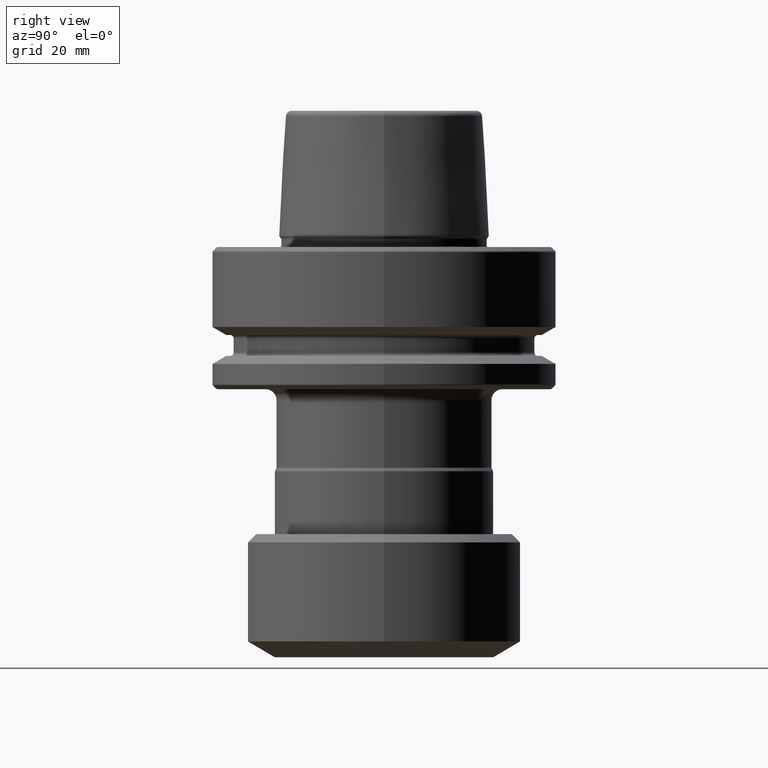
[diagram: clean part render]
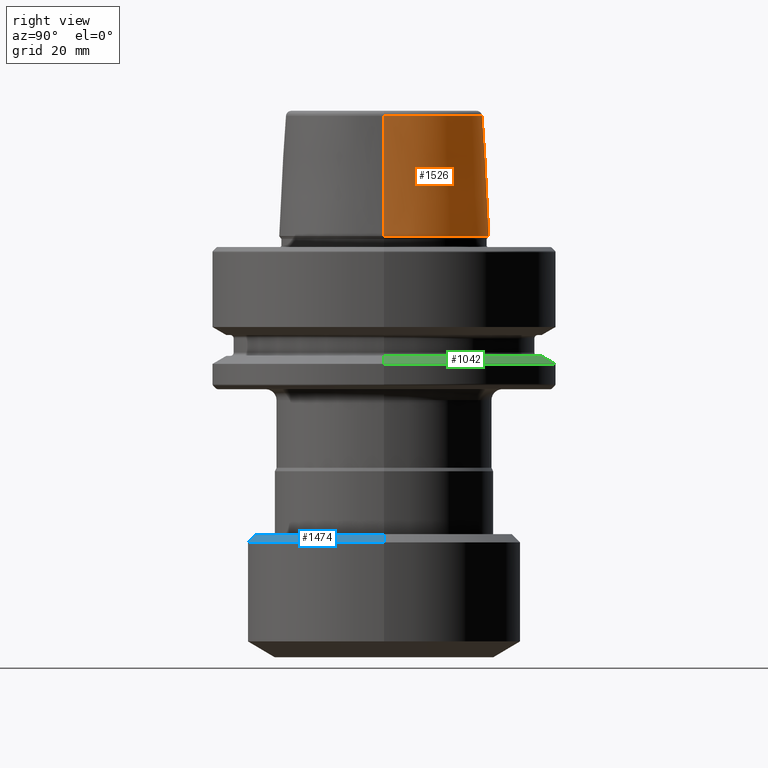
[diagram: same view with three faces highlighted in distinct colors, each labeled with its STEP entity id]
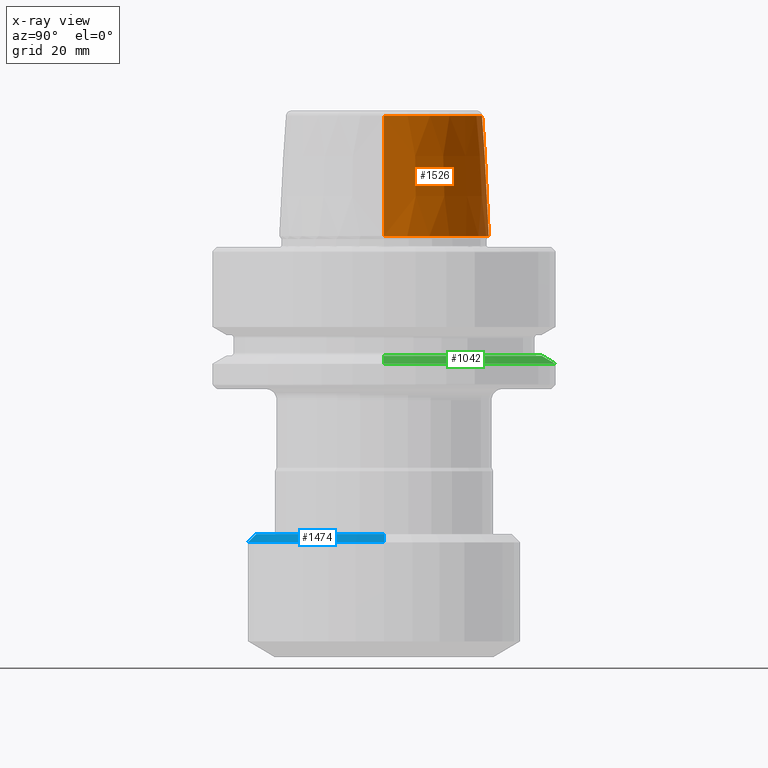
[diagram: x-ray of the same camera — body ghosted, the three highlighted faces saturated]
A machine part, right view with three faces highlighted in distinct colors.
The next image is the same camera in x-ray (body ghosted, the three faces saturated) — at least one of them is partly hidden behind the body in this view.
Their STEP definitions:

[orange] entity #1526 — the highlighted conical surface has half-angle 2.867 deg.
#9 = EDGE_CURVE ( 'NONE', #1050, #134, #1164, .T. ) ;
#13 = EDGE_LOOP ( 'NONE', ( #174, #659, #410, #329 ) ) ;
#97 = VERTEX_POINT ( 'NONE', #569 ) ;
#101 = VECTOR ( 'NONE', #648, 1000.000000000000200 ) ;
#110 = DIRECTION ( 'NONE',  ( -0.0000000000000000000, -0.0000000000000000000, 1.000000000000000000 ) ) ;
#134 = VERTEX_POINT ( 'NONE', #1189 ) ;
#174 = ORIENTED_EDGE ( 'NONE', *, *, #654, .F. ) ;
#259 = CIRCLE ( 'NONE', #1270, 19.15522368715920700 ) ;
#276 = CIRCLE ( 'NONE', #314, 18.05608644688143700 ) ;
#314 = AXIS2_PLACEMENT_3D ( 'NONE', #1167, #435, #1287 ) ;
#317 = CARTESIAN_POINT ( 'NONE',  ( -18.05608644688143700, 0.0000000000000000000, 18.95001190017800500 ) ) ;
#329 = ORIENTED_EDGE ( 'NONE', *, *, #9, .F. ) ;
#404 = CONICAL_SURFACE ( 'NONE', #1029, 18.05608644688143700, 0.05003277189050445900 ) ;
#410 = ORIENTED_EDGE ( 'NONE', *, *, #1104, .T. ) ;
#435 = DIRECTION ( 'NONE',  ( -0.0000000000000000000, -0.0000000000000000000, 1.000000000000000000 ) ) ;
#474 = CARTESIAN_POINT ( 'NONE',  ( -18.05608644688143700, 0.0000000000000000000, 18.95001190017800500 ) ) ;
#489 = FACE_OUTER_BOUND ( 'NONE', #13, .T. ) ;
#534 = EDGE_CURVE ( 'NONE', #97, #813, #1124, .T. ) ;
#569 = CARTESIAN_POINT ( 'NONE',  ( 18.05608644688143700, 2.278535592386617200E-015, 18.95001190017800500 ) ) ;
#648 = DIRECTION ( 'NONE',  ( 0.05001190017800869600, 6.124691347227529000E-018, -0.9987486219467762700 ) ) ;
#654 = EDGE_CURVE ( 'NONE', #97, #1050, #276, .T. ) ;
#659 = ORIENTED_EDGE ( 'NONE', *, *, #534, .T. ) ;
#803 = DIRECTION ( 'NONE',  ( -1.000000000000000000, 0.0000000000000000000, 0.0000000000000000000 ) ) ;
#813 = VERTEX_POINT ( 'NONE', #1447 ) ;
#844 = CARTESIAN_POINT ( 'NONE',  ( 0.0000000000000000000, 0.0000000000000000000, -3.000000000000002700 ) ) ;
#970 = DIRECTION ( 'NONE',  ( 1.000000000000000000, 0.0000000000000000000, 0.0000000000000000000 ) ) ;
#1029 = AXIS2_PLACEMENT_3D ( 'NONE', #1420, #1297, #803 ) ;
#1050 = VERTEX_POINT ( 'NONE', #474 ) ;
#1104 = EDGE_CURVE ( 'NONE', #813, #134, #259, .T. ) ;
#1124 = LINE ( 'NONE', #1377, #101 ) ;
#1130 = VECTOR ( 'NONE', #1550, 1000.000000000000200 ) ;
#1164 = LINE ( 'NONE', #317, #1130 ) ;
#1167 = CARTESIAN_POINT ( 'NONE',  ( 0.0000000000000000000, 0.0000000000000000000, 18.95001190017800500 ) ) ;
#1189 = CARTESIAN_POINT ( 'NONE',  ( -19.15522368715920700, 2.345838337543108300E-015, -3.000000000000002700 ) ) ;
#1270 = AXIS2_PLACEMENT_3D ( 'NONE', #844, #110, #970 ) ;
#1287 = DIRECTION ( 'NONE',  ( 1.000000000000000000, 0.0000000000000000000, 0.0000000000000000000 ) ) ;
#1297 = DIRECTION ( 'NONE',  ( 0.0000000000000000000, 0.0000000000000000000, -1.000000000000000000 ) ) ;
#1377 = CARTESIAN_POINT ( 'NONE',  ( 18.05608644688143700, 2.211232847230125700E-015, 18.95001190017800500 ) ) ;
#1420 = CARTESIAN_POINT ( 'NONE',  ( 0.0000000000000000000, 0.0000000000000000000, 18.95001190017800500 ) ) ;
#1447 = CARTESIAN_POINT ( 'NONE',  ( 19.15522368715920700, 0.0000000000000000000, -3.000000000000002700 ) ) ;
#1526 = ADVANCED_FACE ( 'NONE', ( #489 ), #404, .T. ) ;
#1550 = DIRECTION ( 'NONE',  ( -0.05001190017800869600, 0.0000000000000000000, -0.9987486219467762700 ) ) ;

[blue] entity #1474 — the highlighted conical surface has half-angle 45 deg.
#116 = ORIENTED_EDGE ( 'NONE', *, *, #1338, .F. ) ;
#251 = ORIENTED_EDGE ( 'NONE', *, *, #985, .T. ) ;
#264 = CARTESIAN_POINT ( 'NONE',  ( 0.0000000000000000000, 0.0000000000000000000, -58.99792742916139300 ) ) ;
#277 = EDGE_CURVE ( 'NONE', #745, #835, #520, .T. ) ;
#386 = DIRECTION ( 'NONE',  ( 1.000000000000000000, 0.0000000000000000000, 0.0000000000000000000 ) ) ;
#387 = CIRCLE ( 'NONE', #1314, 23.50000000002246000 ) ;
#411 = DIRECTION ( 'NONE',  ( -0.0000000000000000000, -0.0000000000000000000, 1.000000000000000000 ) ) ;
#420 = EDGE_LOOP ( 'NONE', ( #116, #1121, #458, #251 ) ) ;
#438 = CARTESIAN_POINT ( 'NONE',  ( 0.0000000000000000000, 0.0000000000000000000, -58.99792742916139300 ) ) ;
#458 = ORIENTED_EDGE ( 'NONE', *, *, #277, .T. ) ;
#520 = LINE ( 'NONE', #607, #796 ) ;
#565 = DIRECTION ( 'NONE',  ( 0.0000000000000000000, 0.0000000000000000000, -1.000000000000000000 ) ) ;
#580 = CARTESIAN_POINT ( 'NONE',  ( -23.50000000002246000, 0.0000000000000000000, -57.49792742916139300 ) ) ;
#607 = CARTESIAN_POINT ( 'NONE',  ( -25.00000000002246000, 0.0000000000000000000, -58.99792742916139300 ) ) ;
#707 = AXIS2_PLACEMENT_3D ( 'NONE', #438, #565, #1171 ) ;
#712 = CARTESIAN_POINT ( 'NONE',  ( -25.00000000002246000, 3.061616997871133400E-015, -58.99792742916139300 ) ) ;
#745 = VERTEX_POINT ( 'NONE', #580 ) ;
#796 = VECTOR ( 'NONE', #842, 1000.000000000000000 ) ;
#835 = VERTEX_POINT ( 'NONE', #712 ) ;
#842 = DIRECTION ( 'NONE',  ( -0.7071067811865466800, 0.0000000000000000000, -0.7071067811865483500 ) ) ;
#925 = FACE_OUTER_BOUND ( 'NONE', #420, .T. ) ;
#985 = EDGE_CURVE ( 'NONE', #835, #1430, #1059, .T. ) ;
#991 = CARTESIAN_POINT ( 'NONE',  ( 23.50000000002246000, 2.969768487935082000E-015, -57.49792742916139300 ) ) ;
#1005 = CARTESIAN_POINT ( 'NONE',  ( 25.00000000002246000, 3.061616997871133400E-015, -58.99792742916139300 ) ) ;
#1059 = CIRCLE ( 'NONE', #1198, 25.00000000002246000 ) ;
#1121 = ORIENTED_EDGE ( 'NONE', *, *, #1362, .F. ) ;
#1127 = DIRECTION ( 'NONE',  ( -0.0000000000000000000, -0.0000000000000000000, 1.000000000000000000 ) ) ;
#1135 = CONICAL_SURFACE ( 'NONE', #707, 25.00000000002246000, 0.7853981633974471700 ) ;
#1145 = CARTESIAN_POINT ( 'NONE',  ( 0.0000000000000000000, 0.0000000000000000000, -57.49792742916139300 ) ) ;
#1171 = DIRECTION ( 'NONE',  ( -1.000000000000000000, 0.0000000000000000000, 0.0000000000000000000 ) ) ;
#1198 = AXIS2_PLACEMENT_3D ( 'NONE', #264, #1127, #386 ) ;
#1235 = VERTEX_POINT ( 'NONE', #991 ) ;
#1255 = DIRECTION ( 'NONE',  ( 0.7071067811865466800, 8.659560562354923000E-017, -0.7071067811865483500 ) ) ;
#1267 = DIRECTION ( 'NONE',  ( 1.000000000000000000, 0.0000000000000000000, 0.0000000000000000000 ) ) ;
#1314 = AXIS2_PLACEMENT_3D ( 'NONE', #1145, #411, #1267 ) ;
#1329 = LINE ( 'NONE', #1005, #1370 ) ;
#1338 = EDGE_CURVE ( 'NONE', #1235, #1430, #1329, .T. ) ;
#1362 = EDGE_CURVE ( 'NONE', #745, #1235, #387, .T. ) ;
#1370 = VECTOR ( 'NONE', #1255, 1000.000000000000000 ) ;
#1430 = VERTEX_POINT ( 'NONE', #1532 ) ;
#1474 = ADVANCED_FACE ( 'NONE', ( #925 ), #1135, .T. ) ;
#1532 = CARTESIAN_POINT ( 'NONE',  ( 25.00000000002246000, 0.0000000000000000000, -58.99792742916139300 ) ) ;

[green] entity #1042 — the highlighted conical surface has half-angle 60 deg.
#48 = EDGE_LOOP ( 'NONE', ( #1387, #972, #1195, #735 ) ) ;
#50 = FACE_OUTER_BOUND ( 'NONE', #48, .T. ) ;
#69 = AXIS2_PLACEMENT_3D ( 'NONE', #916, #175, #1026 ) ;
#83 = EDGE_CURVE ( 'NONE', #1408, #596, #303, .T. ) ;
#108 = VECTOR ( 'NONE', #1321, 1000.000000000000000 ) ;
#175 = DIRECTION ( 'NONE',  ( -0.0000000000000000000, -0.0000000000000000000, 1.000000000000000000 ) ) ;
#246 = EDGE_CURVE ( 'NONE', #557, #596, #766, .T. ) ;
#294 = CONICAL_SURFACE ( 'NONE', #692, 28.94089653438085100, 1.047197551196598300 ) ;
#302 = DIRECTION ( 'NONE',  ( -0.0000000000000000000, -0.0000000000000000000, 1.000000000000000000 ) ) ;
#303 = CIRCLE ( 'NONE', #1506, 31.50000000000000000 ) ;
#313 = CARTESIAN_POINT ( 'NONE',  ( 0.0000000000000000000, 0.0000000000000000000, -26.37749907475931700 ) ) ;
#339 = DIRECTION ( 'NONE',  ( -1.000000000000000000, 0.0000000000000000000, 0.0000000000000000000 ) ) ;
#350 = CIRCLE ( 'NONE', #69, 28.94089653438085100 ) ;
#445 = CARTESIAN_POINT ( 'NONE',  ( 28.94089653438085100, 3.700937523921292900E-015, -24.89999999999999900 ) ) ;
#466 = DIRECTION ( 'NONE',  ( 0.0000000000000000000, 0.0000000000000000000, -1.000000000000000000 ) ) ;
#557 = VERTEX_POINT ( 'NONE', #1382 ) ;
#596 = VERTEX_POINT ( 'NONE', #1522 ) ;
#615 = EDGE_CURVE ( 'NONE', #688, #557, #350, .T. ) ;
#620 = CARTESIAN_POINT ( 'NONE',  ( 28.94089653438085100, 3.544237630528423800E-015, -24.89999999999999900 ) ) ;
#688 = VERTEX_POINT ( 'NONE', #445 ) ;
#692 = AXIS2_PLACEMENT_3D ( 'NONE', #955, #466, #339 ) ;
#714 = CARTESIAN_POINT ( 'NONE',  ( -28.94089653438085100, 0.0000000000000000000, -24.89999999999999900 ) ) ;
#735 = ORIENTED_EDGE ( 'NONE', *, *, #246, .F. ) ;
#739 = DIRECTION ( 'NONE',  ( 0.8660254037844389300, 1.060575238724907300E-016, -0.4999999999999995000 ) ) ;
#766 = LINE ( 'NONE', #714, #108 ) ;
#909 = CARTESIAN_POINT ( 'NONE',  ( 31.50000000000000000, 0.0000000000000000000, -26.37749907475931700 ) ) ;
#916 = CARTESIAN_POINT ( 'NONE',  ( 0.0000000000000000000, 0.0000000000000000000, -24.89999999999999900 ) ) ;
#955 = CARTESIAN_POINT ( 'NONE',  ( 0.0000000000000000000, 0.0000000000000000000, -24.89999999999999900 ) ) ;
#972 = ORIENTED_EDGE ( 'NONE', *, *, #1188, .T. ) ;
#1026 = DIRECTION ( 'NONE',  ( 1.000000000000000000, 0.0000000000000000000, 0.0000000000000000000 ) ) ;
#1042 = ADVANCED_FACE ( 'NONE', ( #50 ), #294, .T. ) ;
#1052 = DIRECTION ( 'NONE',  ( 1.000000000000000000, 0.0000000000000000000, 0.0000000000000000000 ) ) ;
#1129 = VECTOR ( 'NONE', #739, 1000.000000000000000 ) ;
#1163 = LINE ( 'NONE', #620, #1129 ) ;
#1188 = EDGE_CURVE ( 'NONE', #688, #1408, #1163, .T. ) ;
#1195 = ORIENTED_EDGE ( 'NONE', *, *, #83, .T. ) ;
#1321 = DIRECTION ( 'NONE',  ( -0.8660254037844389300, 0.0000000000000000000, -0.4999999999999995000 ) ) ;
#1382 = CARTESIAN_POINT ( 'NONE',  ( -28.94089653438085100, 0.0000000000000000000, -24.89999999999999900 ) ) ;
#1387 = ORIENTED_EDGE ( 'NONE', *, *, #615, .F. ) ;
#1408 = VERTEX_POINT ( 'NONE', #909 ) ;
#1506 = AXIS2_PLACEMENT_3D ( 'NONE', #313, #302, #1052 ) ;
#1522 = CARTESIAN_POINT ( 'NONE',  ( -31.50000000000000000, 3.857637417314162700E-015, -26.37749907475931700 ) ) ;